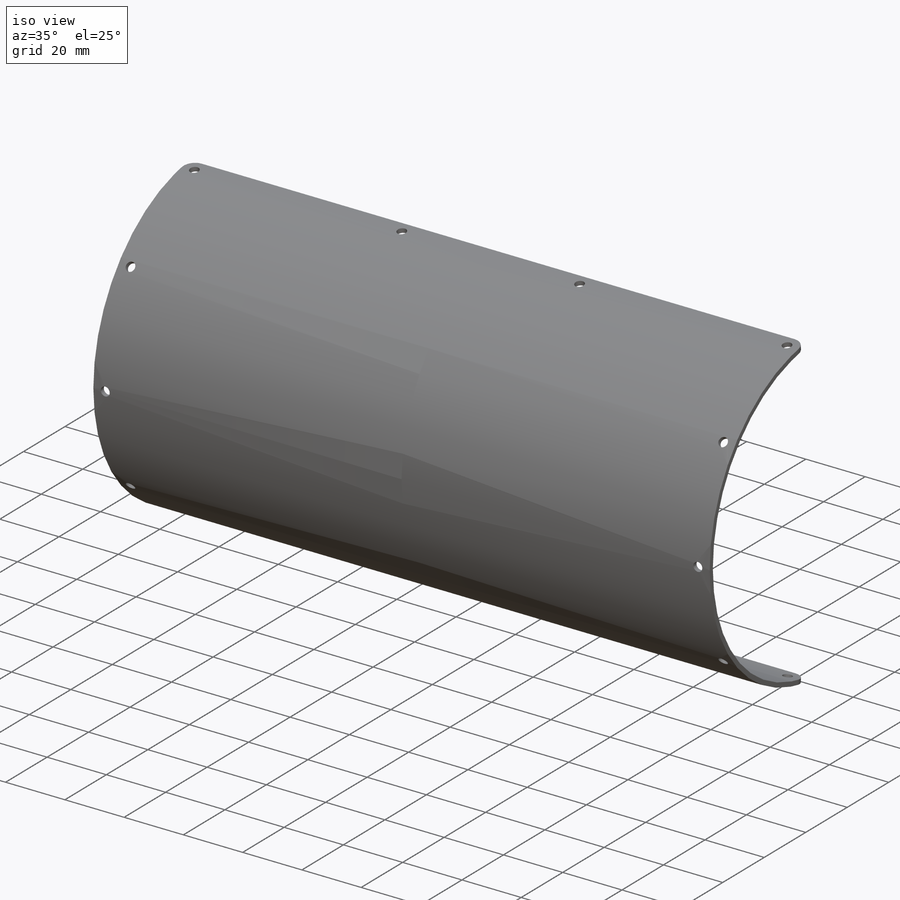
[diagram: iso view]
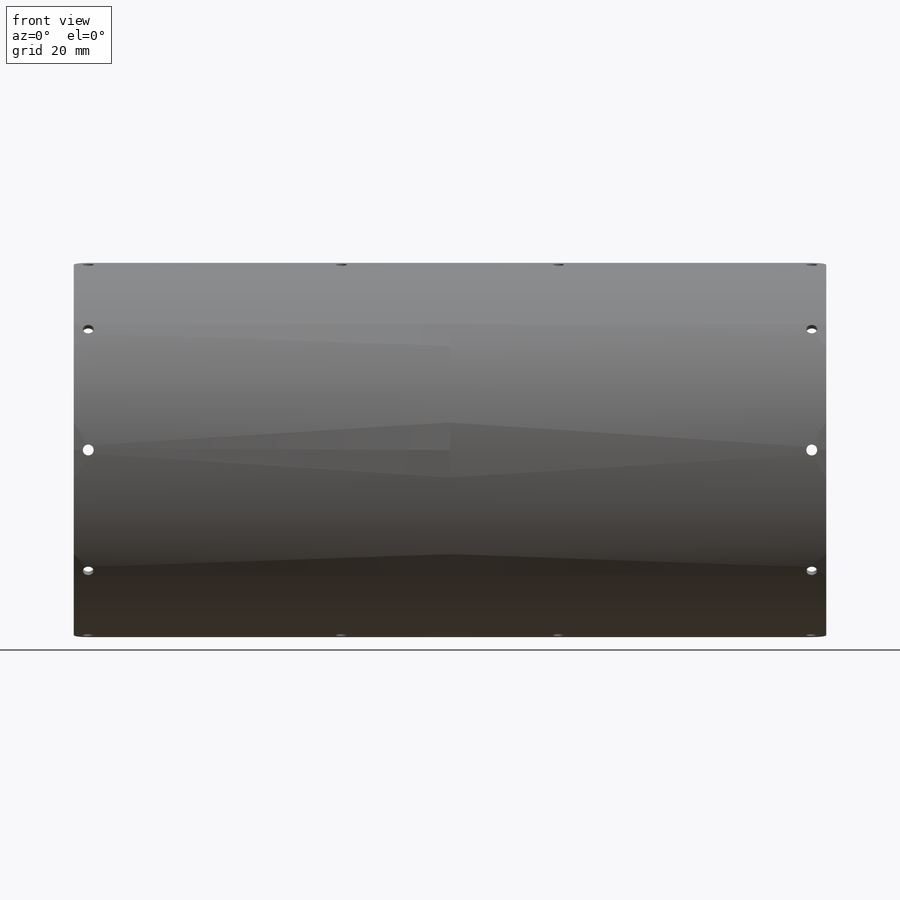
[diagram: front view]
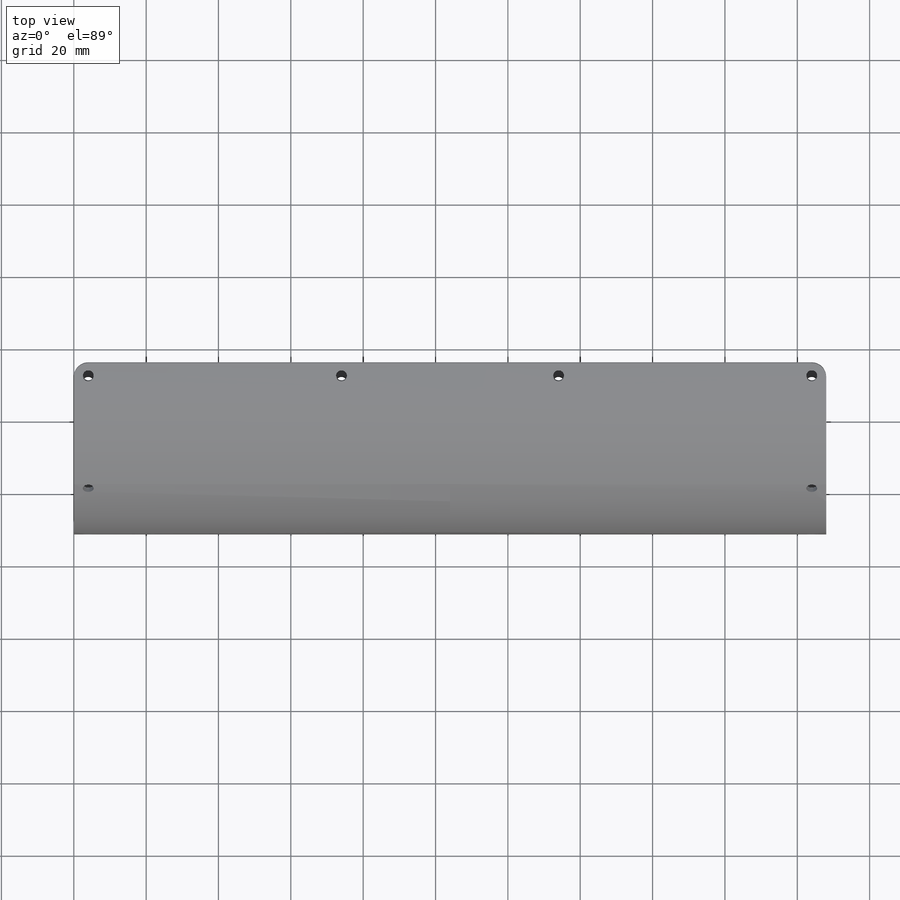
[diagram: top view]
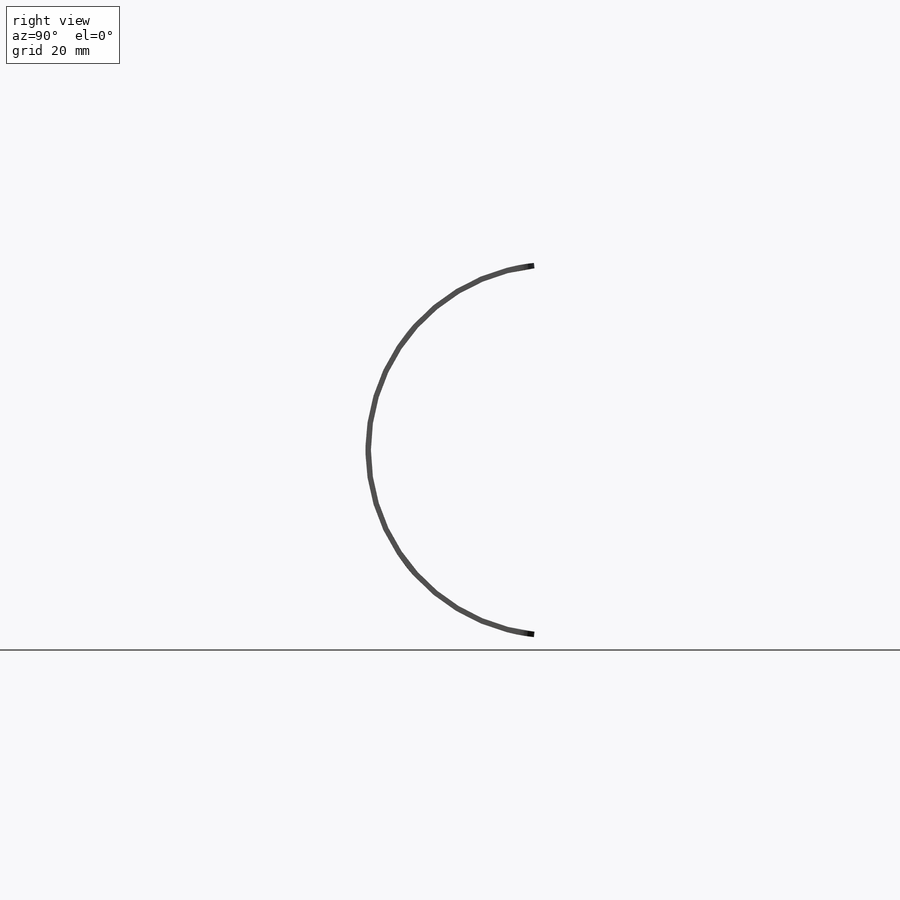
[diagram: right view]
SOLIDWORKS PART (.sldprt)
format: sldprt  version: not decoded by parser v0  size: 338,432 bytes
history: native  units: mm
features: sketch x7, plane x2, pattern_circular x2, material x1, extrude x1, fillet x1, hole x1, pattern_linear x1, mirror x1 (+12 scaffold rows collapsed)
feature tree (29):
  scaffold x12  (default folders/planes/origin — collapsed)
  material  "Hexcel AS4C (3000 Filaments)"
  sketch  "Sketch1"  dims[c1.D1=101.0mm c1.D4=101.0mm c1.D2=~49.361598mm c2.D2=9.0deg c2.D3=~44.808311mm c3.D3=9.0deg c3.D4=1.5mm c3.D5=52.0mm c3.D2=~51.556002mm c4.D2=6.0deg c4.D3=50.5mm c5.D3=6.0deg c5.D5=~28.114637mm]
  extrude  "Boss-Extrude1"  Depth=208mm
  fillet  "Fillet1"  Radius=4mm
  sketch  "Sketch3"  dims[D1=~41.681763mm]
  sketch  "Sketch4"  dims[D1=~0.221742mm]
  plane  "Plane1"
  hole  "Ø3.0mm Dowel Hole1"  Diameter=3mm Depth=17.29mm
  sketch  "Sketch6"  dims[D1=4.0mm]
  sketch  "Sketch5"  dims[hole-wizard template sketch: 50 standard entries collapsed; hole parameters above]
  pattern_circular  "CirPattern1"  Count=3 Angle=40deg
  pattern_circular  "CirPattern2"  Count=3 Angle=40deg
  pattern_linear  "LPattern1"  Count1=2 Count2=1 Spacing1=70mm Spacing2=10mm
  sketch  "Sketch9"  dims[D1=104.0mm]
  sketch  "Sketch10"  dims[D1=~59.74941mm]
  plane  "Plane2"
  mirror  "Mirror2"
decode coverage: 13 of 14 modeling features carry decoded parameters
note: ~ marks probable driven/reference dimensions
note: suppression state not decoded; provenance and decode notes live in map.json
